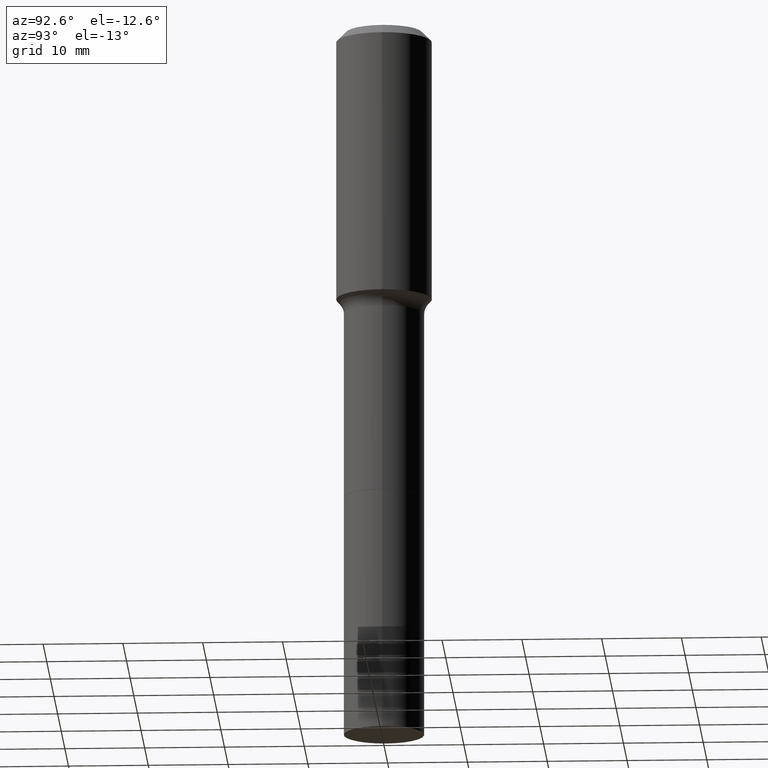
[diagram: clean part render]
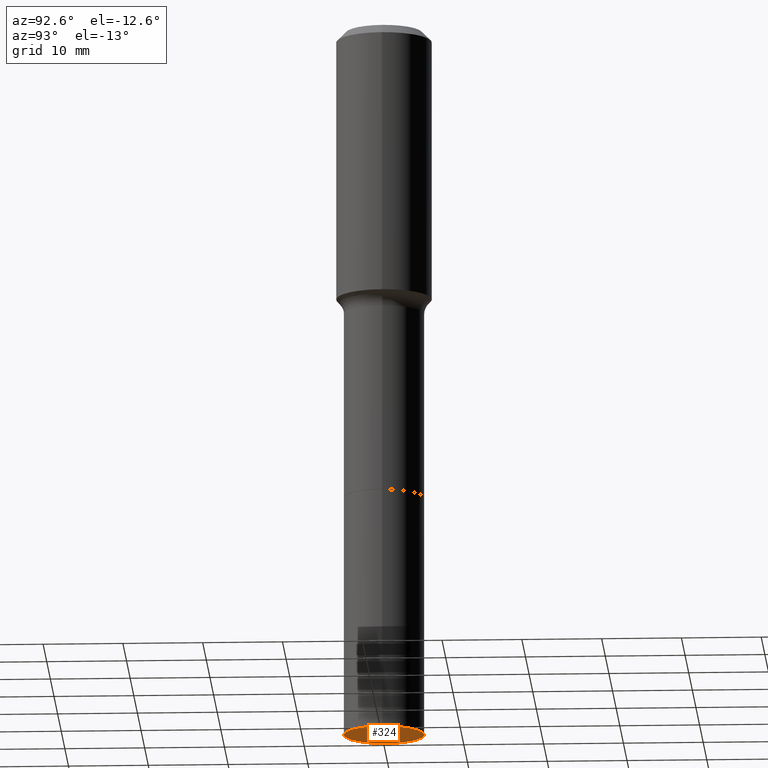
[diagram: same view with one face highlighted and labeled with its STEP entity id]
A machine part, auxiliary view. The second image highlights one B-rep face of the part: STEP entity #324.
In plain terms, the highlighted planar face has unit normal (0, -0, -1).
Its self-contained STEP definition (entity closure, byte-faithful):
#2 = AXIS2_PLACEMENT_3D ( 'NONE', #517, #344, #305 ) ;
#22 = CIRCLE ( 'NONE', #2, 0.1985000000000000098 ) ;
#27 = EDGE_LOOP ( 'NONE', ( #144, #306 ) ) ;
#44 = CARTESIAN_POINT ( 'NONE',  ( 8.665029620955794069E-29, -1.237136582792291707E-14, -3.543299999999999894 ) ) ;
#66 = EDGE_CURVE ( 'NONE', #80, #474, #22, .T. ) ;
#80 = VERTEX_POINT ( 'NONE', #157 ) ;
#88 = AXIS2_PLACEMENT_3D ( 'NONE', #44, #91, #130 ) ;
#91 = DIRECTION ( 'NONE',  ( 2.438088387897960049E-29, -3.491481338843145188E-15, -1.000000000000000000 ) ) ;
#97 = CARTESIAN_POINT ( 'NONE',  ( 8.665029620955794069E-29, -1.237136582792291707E-14, -3.543299999999999894 ) ) ;
#130 = DIRECTION ( 'NONE',  ( -1.000000000000000000, 6.982962677686265922E-15, -4.876176775795935793E-29 ) ) ;
#144 = ORIENTED_EDGE ( 'NONE', *, *, #66, .F. ) ;
#157 = CARTESIAN_POINT ( 'NONE',  ( 0.1985000000000000098, -1.375748391944363982E-14, -3.543299999999999894 ) ) ;
#191 = AXIS2_PLACEMENT_3D ( 'NONE', #97, #209, #274 ) ;
#206 = CIRCLE ( 'NONE', #191, 0.1985000000000000098 ) ;
#209 = DIRECTION ( 'NONE',  ( -2.445468806185136597E-29, 3.491481338843145583E-15, 1.000000000000000000 ) ) ;
#241 = PLANE ( 'NONE',  #88 ) ;
#242 = FACE_OUTER_BOUND ( 'NONE', #27, .T. ) ;
#274 = DIRECTION ( 'NONE',  ( 1.000000000000000000, -6.982962677686261189E-15, 0.000000000000000000 ) ) ;
#305 = DIRECTION ( 'NONE',  ( 1.000000000000000000, -6.982962677686261189E-15, 0.000000000000000000 ) ) ;
#306 = ORIENTED_EDGE ( 'NONE', *, *, #364, .F. ) ;
#324 = ADVANCED_FACE ( 'NONE', ( #242 ), #241, .T. ) ;
#344 = DIRECTION ( 'NONE',  ( -2.445468806185136597E-29, 3.491481338843145583E-15, 1.000000000000000000 ) ) ;
#364 = EDGE_CURVE ( 'NONE', #474, #80, #206, .T. ) ;
#474 = VERTEX_POINT ( 'NONE', #502 ) ;
#502 = CARTESIAN_POINT ( 'NONE',  ( -0.1985000000000000098, -8.871286916141496321E-15, -3.543299999999999894 ) ) ;
#517 = CARTESIAN_POINT ( 'NONE',  ( 8.665029620955794069E-29, -1.237136582792291707E-14, -3.543299999999999894 ) ) ;